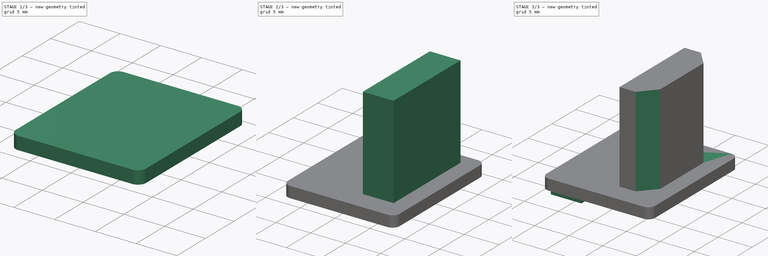
[diagram: build sequence overview — one tinted view per stage of 3, left to right]
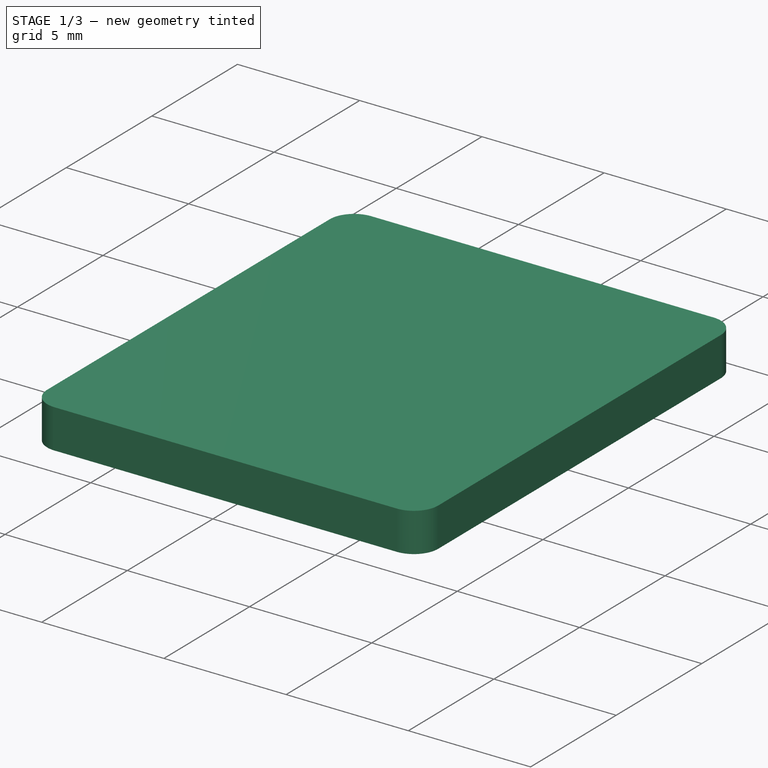
[diagram: stage 1 of 3 — iso view after this stage's code; geometry added in this stage tinted green]
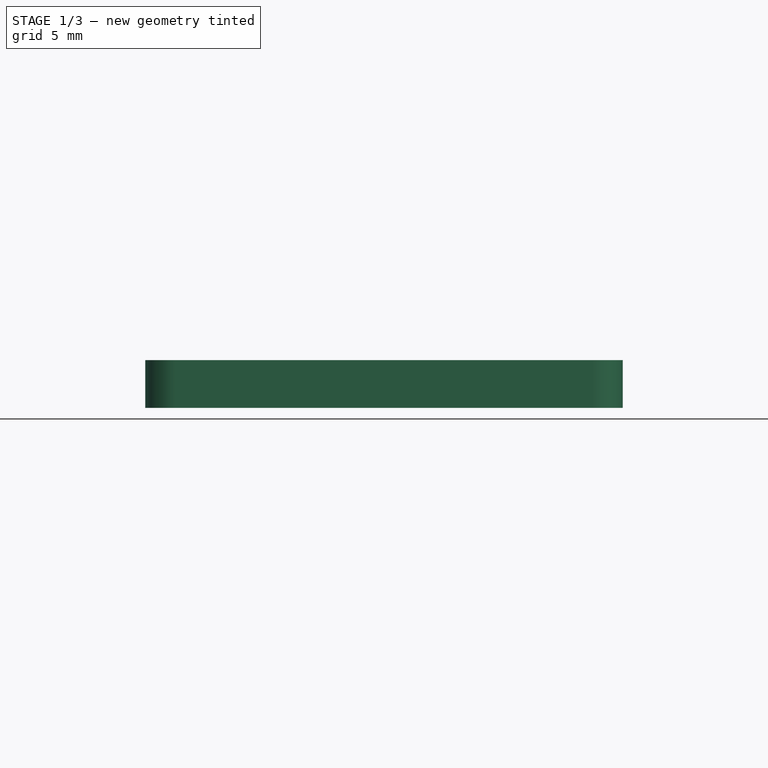
[diagram: stage 1 of 3 — front view after this stage's code; geometry added in this stage tinted green]
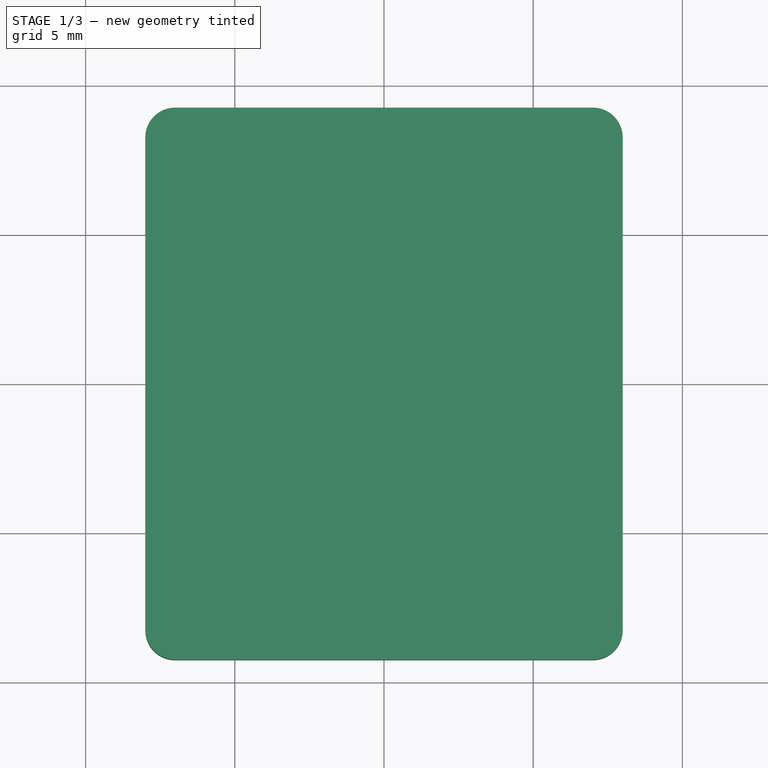
[diagram: stage 1 of 3 — top view after this stage's code; geometry added in this stage tinted green]
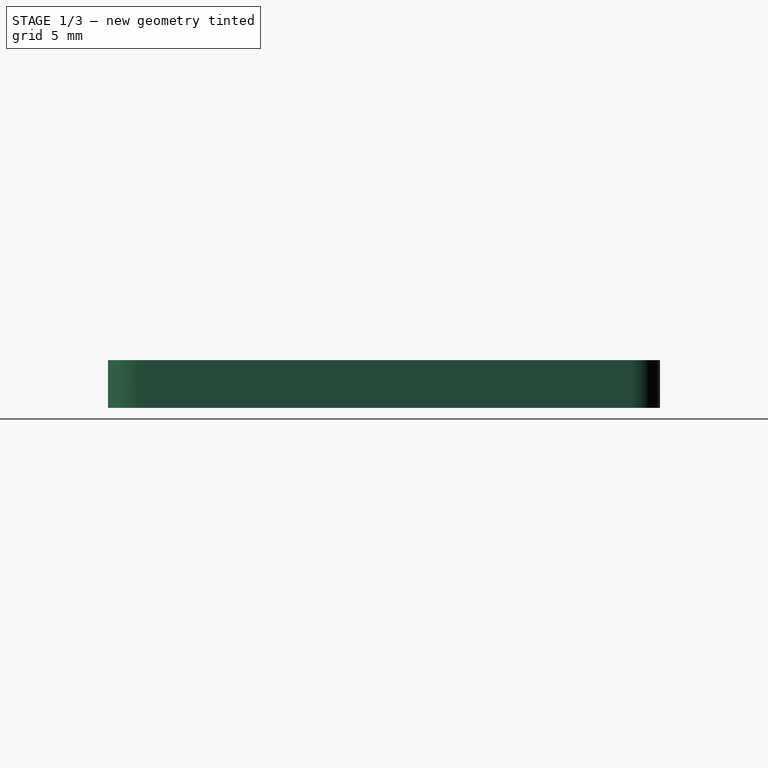
[diagram: stage 1 of 3 — right view after this stage's code; geometry added in this stage tinted green]
FCSTD DOCUMENT  (FreeCAD 0.20R29410 (Git))
Label: HDMI_1
License: All rights reserved
LicenseURL: http://en.wikipedia.org/wiki/All_rights_reserved
objects: Sketcher::SketchObject×4, PartDesign::Pad×3, PartDesign::Fillet×1, PartDesign::Pocket×1, PartDesign::Body×1
note: 15 computed .brp shape members not serialized (recipe doc carries the construction recipe); baked Part::Feature solids carry a one-line shape summary decoded from their .brp

FEATURE [Sketcher::SketchObject] Sketch
  FullyConstrained = true
  MapMode = 5
  Support = -> [XY_Plane]
  sketch-geometry (5):
    g0: LineSegment StartX=-8 StartY=-9.25 StartZ=0 EndX=-8 EndY=9.25 EndZ=0
    g1: LineSegment StartX=-8 StartY=9.25 StartZ=0 EndX=8 EndY=9.25 EndZ=0
    g2: LineSegment StartX=8 StartY=9.25 StartZ=0 EndX=8 EndY=-9.25 EndZ=0
    g3: LineSegment StartX=8 StartY=-9.25 StartZ=0 EndX=-8 EndY=-9.25 EndZ=0
    g4: GeomPoint X=0 Y=0 Z=0
  constraints (12):
    c: Coincident(g0,g1)
    c: Coincident(g1,g2)
    c: Coincident(g2,g3)
    c: Coincident(g3,g0)
    c: Horizontal(g1)
    c: Horizontal(g3)
    c: Vertical(g0)
    c: Vertical(g2)
    c: Symmetric(g1,g0,g4)
    c: Coincident(g4,g-1)
    c: DistanceX(g1,g1) = 16
    c: DistanceY(g2,g2) = 18.5
FEATURE [PartDesign::Pad] Pad
  Direction = (0,0,1)
  Length = 1.6
  Length2 = 10
  Profile = -> Sketch
  ReferenceAxis = -> Sketch [N_Axis]
  Type = 0
FEATURE [PartDesign::Fillet] Fillet
  Base = -> Pad [Edge8,Edge1,Edge2,Edge5]
  BaseFeature = -> Pad
  Radius = 1
  SupportTransform = false
  UseAllEdges = false
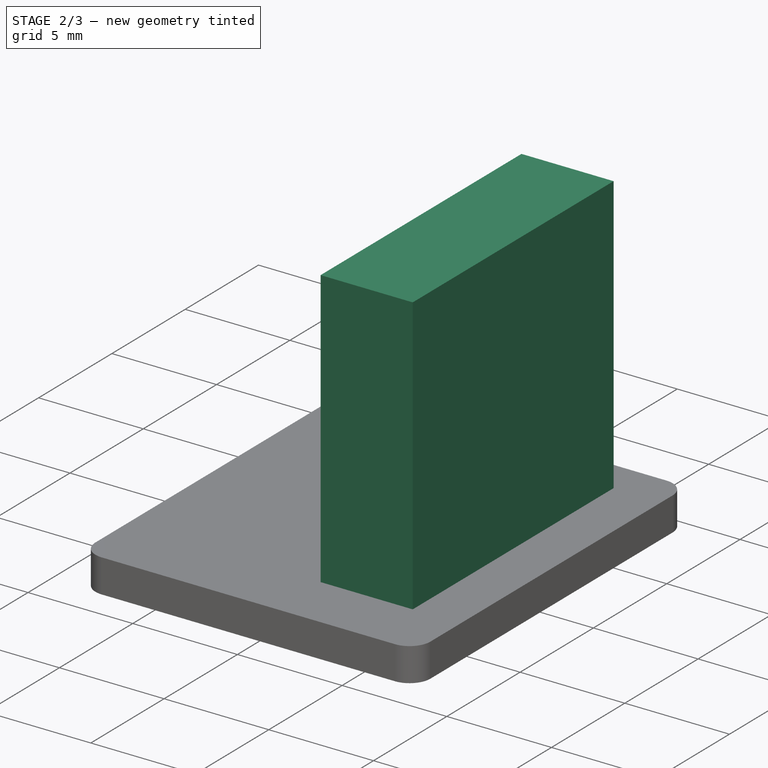
[diagram: stage 2 of 3 — iso view after this stage's code; geometry added in this stage tinted green]
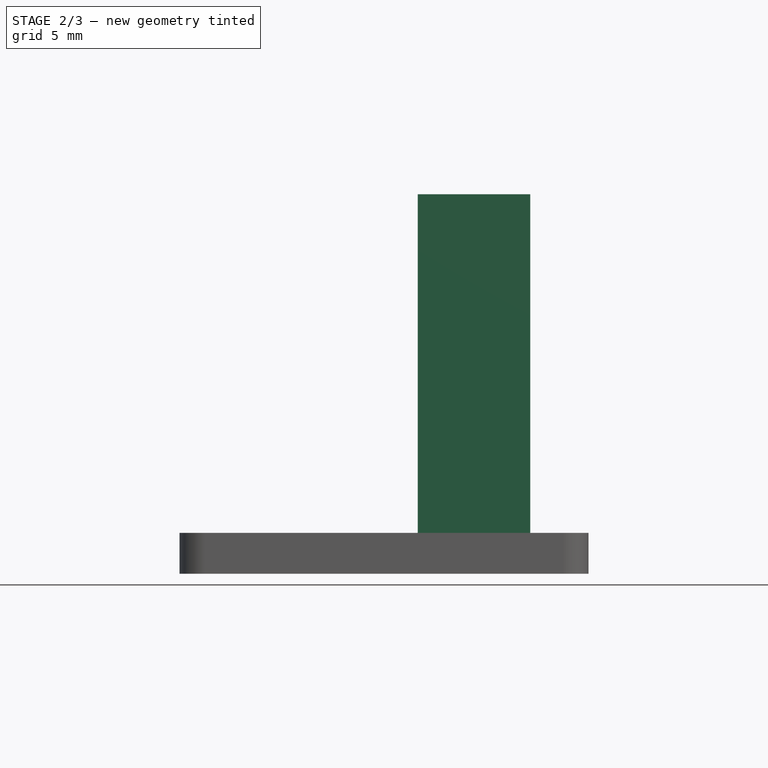
[diagram: stage 2 of 3 — front view after this stage's code; geometry added in this stage tinted green]
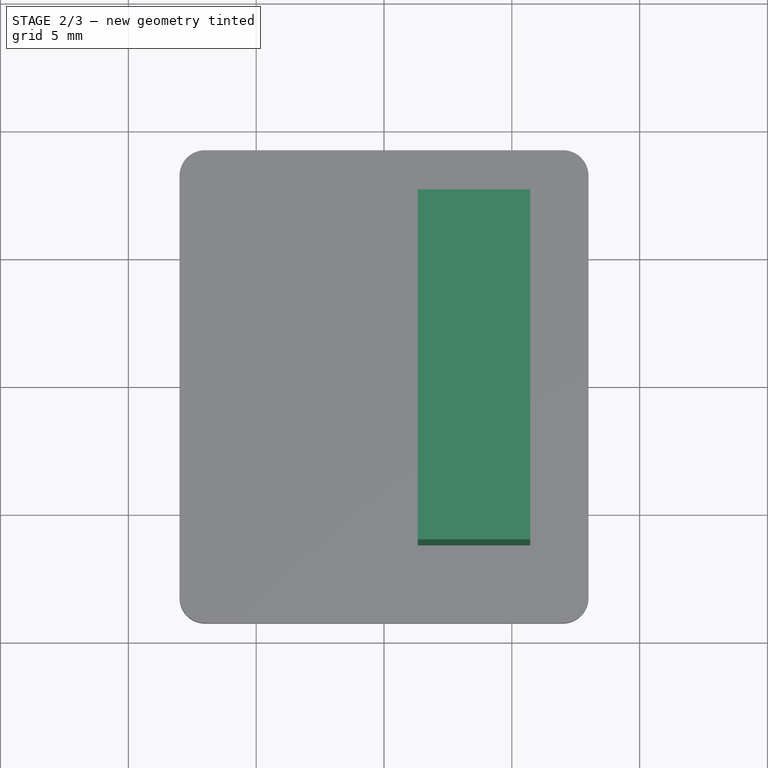
[diagram: stage 2 of 3 — top view after this stage's code; geometry added in this stage tinted green]
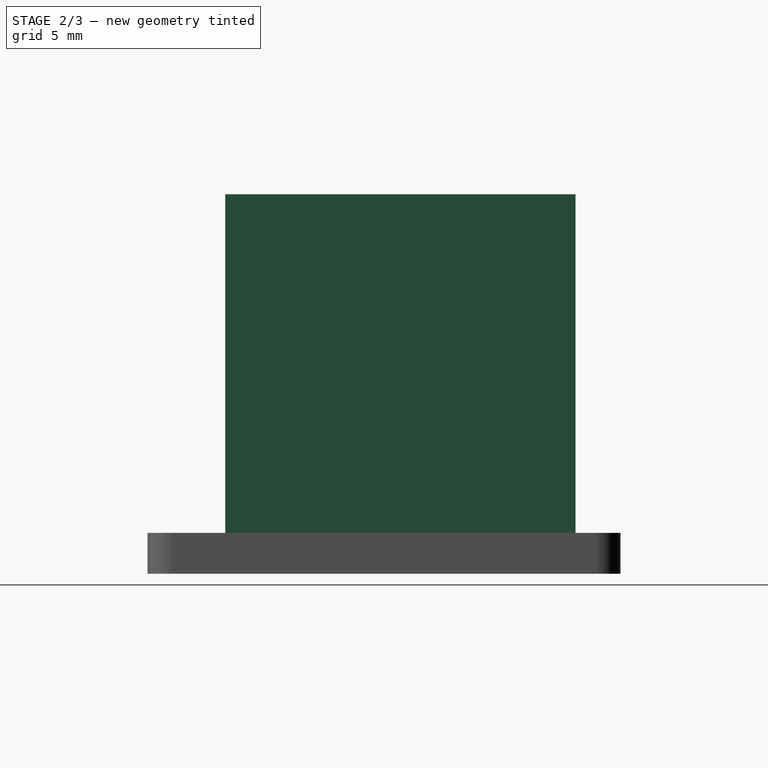
[diagram: stage 2 of 3 — right view after this stage's code; geometry added in this stage tinted green]
FEATURE [Sketcher::SketchObject] Sketch001
  ExternalGeometry = -> [Fillet]
  FullyConstrained = true
  MapMode = 5
  Placement = pos=(0,0,1.6) rot=(0,0,1;0rad)
  Support = -> [Fillet]
  sketch-geometry (5):
    g0: LineSegment StartX=1.32 StartY=7.49 StartZ=0 EndX=1.32 EndY=-6.21 EndZ=0
    g1: LineSegment StartX=1.32 StartY=-6.21 StartZ=0 EndX=5.72 EndY=-6.21 EndZ=0
    g2: LineSegment StartX=5.72 StartY=-6.21 StartZ=0 EndX=5.72 EndY=7.49 EndZ=0
    g3: LineSegment StartX=5.72 StartY=7.49 StartZ=0 EndX=1.32 EndY=7.49 EndZ=0
    g4: GeomPoint X=3.52 Y=0.64 Z=0
  constraints (13):
    c: Coincident(g0,g1)
    c: Coincident(g1,g2)
    c: Coincident(g2,g3)
    c: Coincident(g3,g0)
    c: Horizontal(g1)
    c: Horizontal(g3)
    c: Vertical(g0)
    c: Vertical(g2)
    c: Symmetric(g1,g0,g4)
    c: DistanceX(g1,g1) = 4.4
    c: DistanceY(g2,g2) = 13.7
    c: DistanceX(g2,g-3) = 2.28
    c: DistanceY(g2,g-4) = 1.76
FEATURE [PartDesign::Pad] Pad001
  BaseFeature = -> Fillet
  Direction = (0,0,1)
  Length = 13.25
  Length2 = 10
  Profile = -> Sketch001
  ReferenceAxis = -> Sketch001 [N_Axis]
  Type = 0
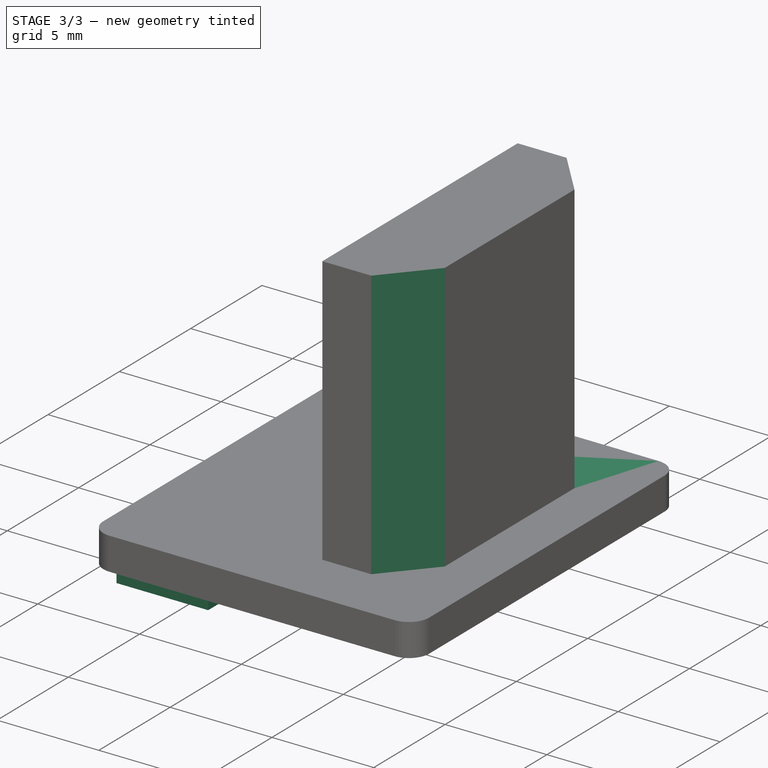
[diagram: stage 3 of 3 — iso view after this stage's code; geometry added in this stage tinted green]
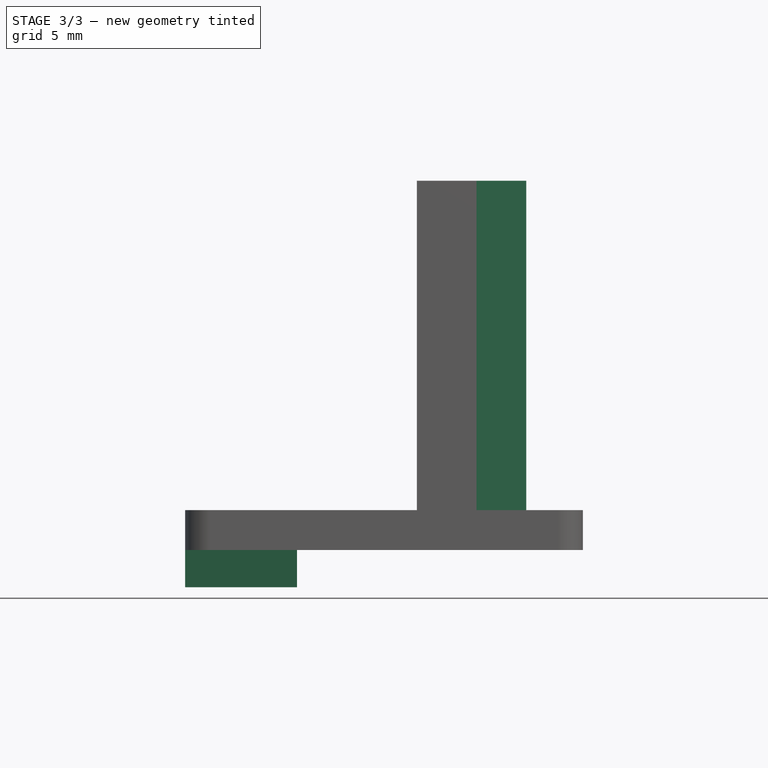
[diagram: stage 3 of 3 — front view after this stage's code; geometry added in this stage tinted green]
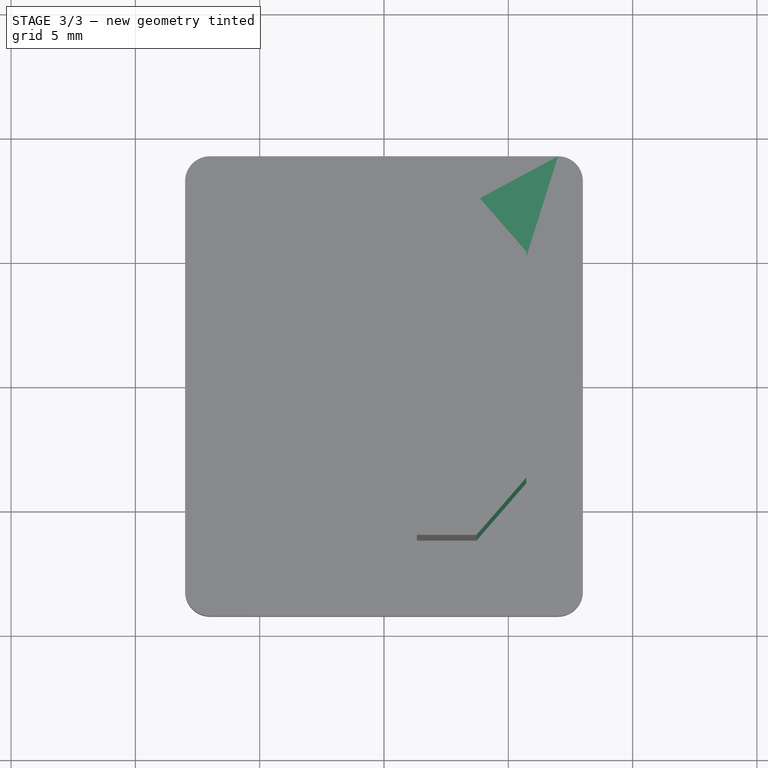
[diagram: stage 3 of 3 — top view after this stage's code; geometry added in this stage tinted green]
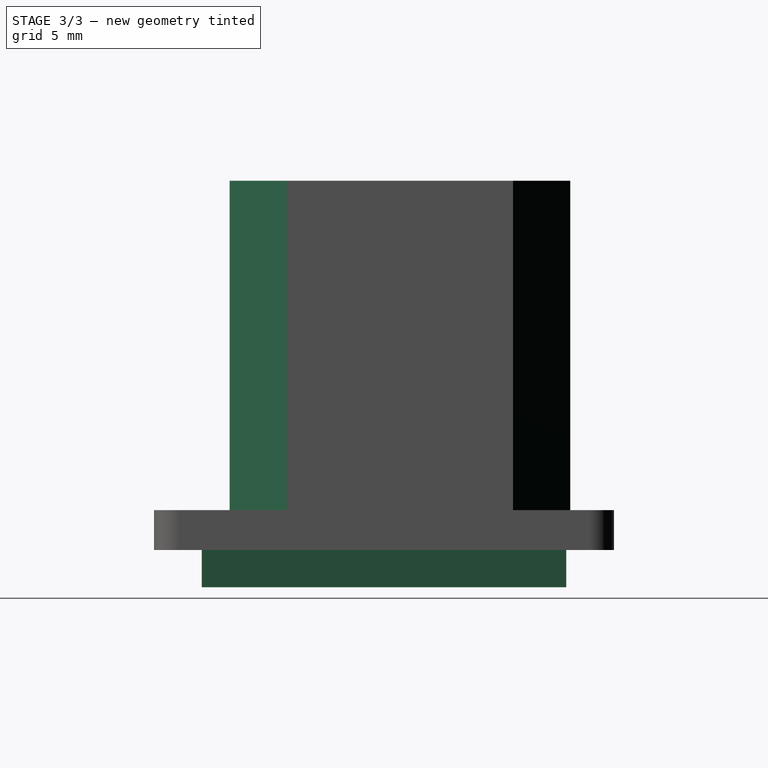
[diagram: stage 3 of 3 — right view after this stage's code; geometry added in this stage tinted green]
FEATURE [Sketcher::SketchObject] Sketch002
  ExternalGeometry = -> [Pad001]
  FullyConstrained = true
  MapMode = 5
  Placement = pos=(0,0,14.85) rot=(0,0,1;0rad)
  Support = -> [Pad001]
  sketch-geometry (6):
    g0: LineSegment StartX=5.72 StartY=7.49 StartZ=0 EndX=5.72 EndY=5.19 EndZ=0
    g1: LineSegment StartX=5.72 StartY=5.19 StartZ=0 EndX=3.72 EndY=7.49 EndZ=0
    g2: LineSegment StartX=3.72 StartY=7.49 StartZ=0 EndX=5.72 EndY=7.49 EndZ=0
    g3: LineSegment StartX=5.72 StartY=-3.91 StartZ=0 EndX=5.72 EndY=-6.21 EndZ=0
    g4: LineSegment StartX=5.72 StartY=-6.21 StartZ=0 EndX=3.72 EndY=-6.21 EndZ=0
    g5: LineSegment StartX=3.72 StartY=-6.21 StartZ=0 EndX=5.72 EndY=-3.91 EndZ=0
  constraints (16):
    c: Coincident(g-5,g0)
    c: PointOnObject(g0,g-5)
    c: Coincident(g0,g1)
    c: PointOnObject(g1,g-3)
    c: Coincident(g1,g2)
    c: Coincident(g2,g0)
    c: DistanceX(g2,g2) = 2
    c: DistanceY(g0,g0) = 2.3
    c: PointOnObject(g3,g-5)
    c: Coincident(g3,g-5)
    c: Coincident(g3,g4)
    c: PointOnObject(g4,g-4)
    c: Coincident(g4,g5)
    c: Coincident(g5,g3)
    c: Equal(g3,g0)
    c: Equal(g2,g4)
FEATURE [PartDesign::Pocket] Pocket
  BaseFeature = -> Pad001
  Direction = (0,0,-1)
  Length = 0
  Length2 = 5
  Profile = -> Sketch002
  ReferenceAxis = -> Sketch002 [N_Axis]
  Type = 3
  UpToFace = -> Pad001 [Face5]
FEATURE [Sketcher::SketchObject] Sketch003
  ExternalGeometry = -> [Pocket]
  FullyConstrained = true
  MapMode = 5
  Placement = pos=(0,0,0) rot=(1,0,0;3.14159rad)
  Support = -> [Pocket]
  sketch-geometry (4):
    g0: LineSegment StartX=-8 StartY=7.33 StartZ=0 EndX=-3.5 EndY=7.33 EndZ=0
    g1: LineSegment StartX=-3.5 StartY=7.33 StartZ=0 EndX=-3.5 EndY=-7.33 EndZ=0
    g2: LineSegment StartX=-3.5 StartY=-7.33 StartZ=0 EndX=-8 EndY=-7.33 EndZ=0
    g3: LineSegment StartX=-8 StartY=-7.33 StartZ=0 EndX=-8 EndY=7.33 EndZ=0
  constraints (11):
    c: Coincident(g0,g1)
    c: Coincident(g1,g2)
    c: Coincident(g2,g3)
    c: Coincident(g3,g0)
    c: Horizontal(g0)
    c: Horizontal(g2)
    c: Vertical(g1)
    c: DistanceX(g0,g0) = 4.5
    c: DistanceY(g1,g1) = 14.66
    c: Symmetric(g0,g2,g-1)
    c: PointOnObject(g0,g-3)
FEATURE [PartDesign::Pad] Pad002
  BaseFeature = -> Pocket
  Direction = (0,0,-1)
  Length = 1.5
  Length2 = 10
  Profile = -> Sketch003
  ReferenceAxis = -> Sketch003 [N_Axis]
  Refine = true
  Type = 0
FEATURE [PartDesign::Body] Body
  Group = -> [Sketch,Pad,Fillet,Sketch001,Pad001,Sketch002,Pocket,Sketch003,Pad002]
  Origin = -> Origin
  Tip = -> Pad002
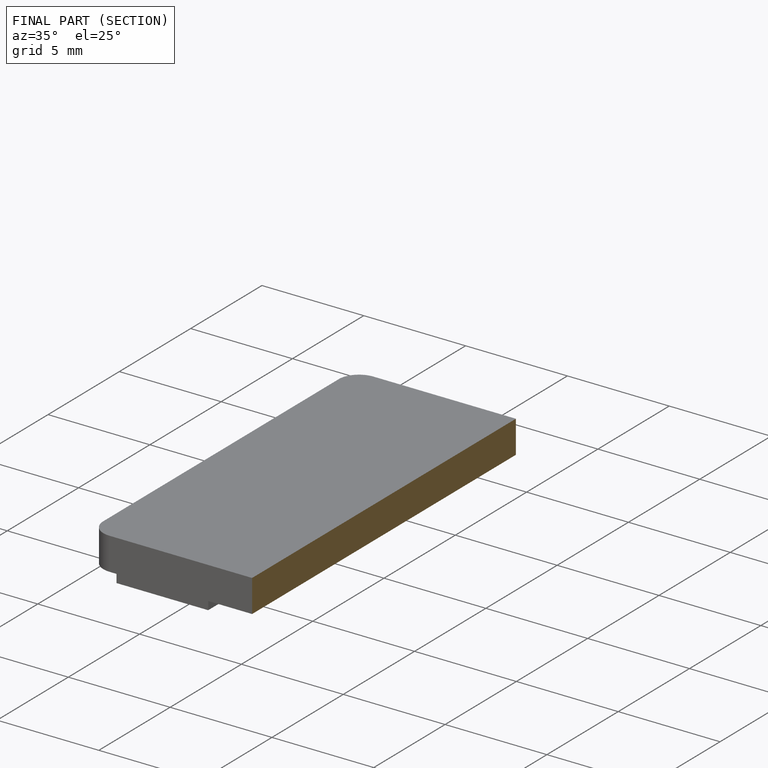
[diagram: finished part — half-section view (interior)]
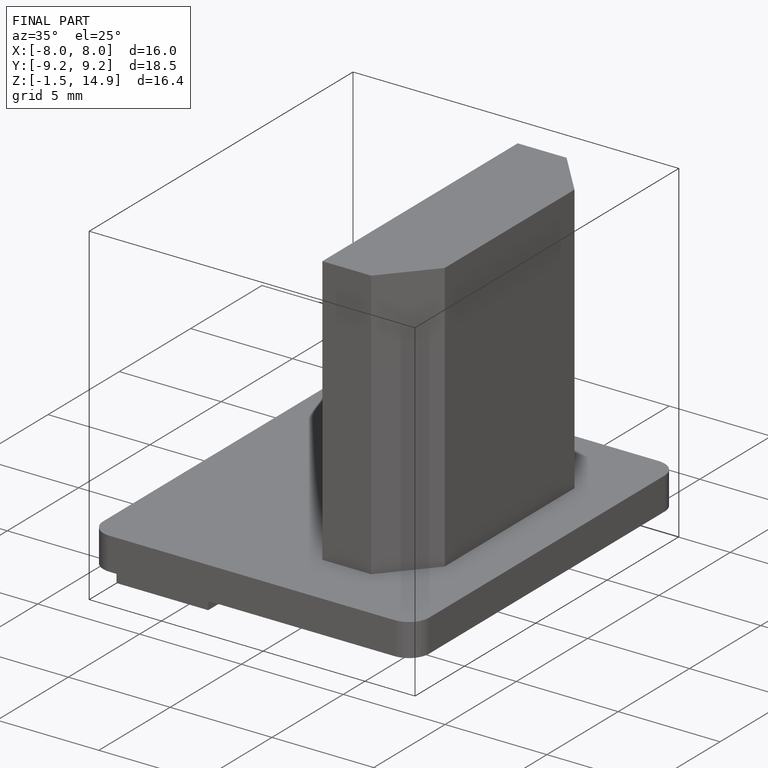
[diagram: finished part — iso view with bounding-box wireframe]
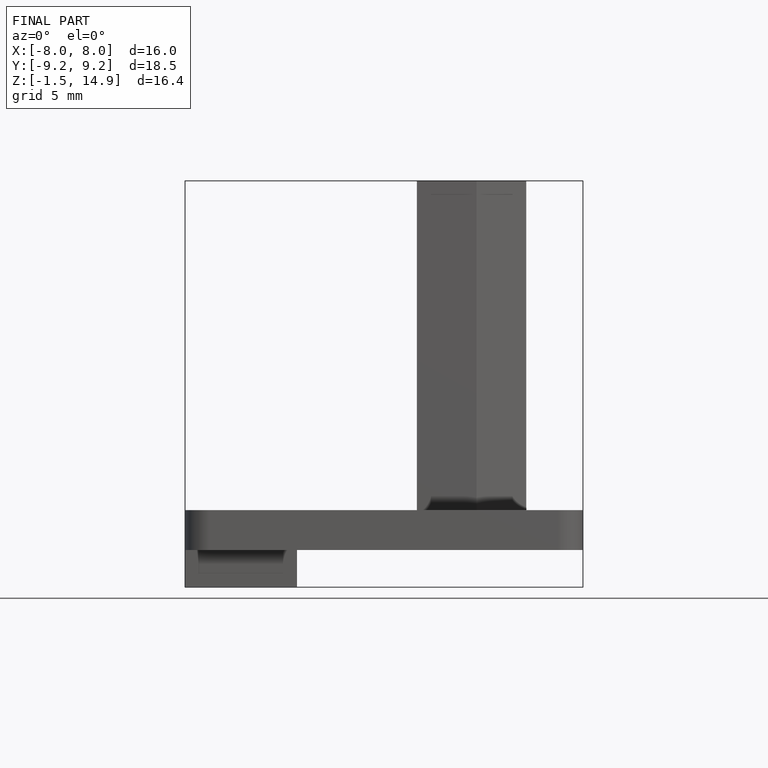
[diagram: finished part — front view with bounding-box wireframe]
